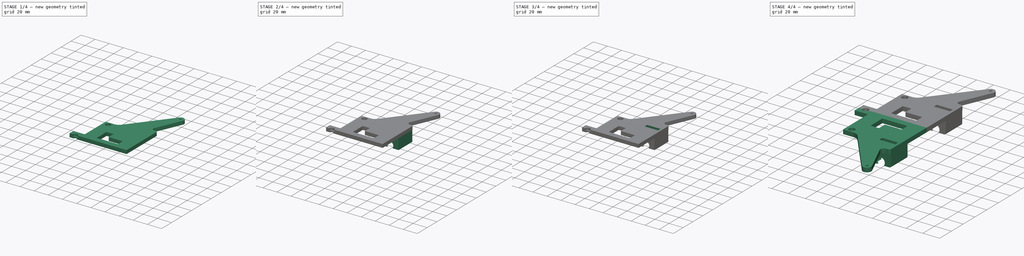
[diagram: build sequence overview — one tinted view per stage of 4, left to right]
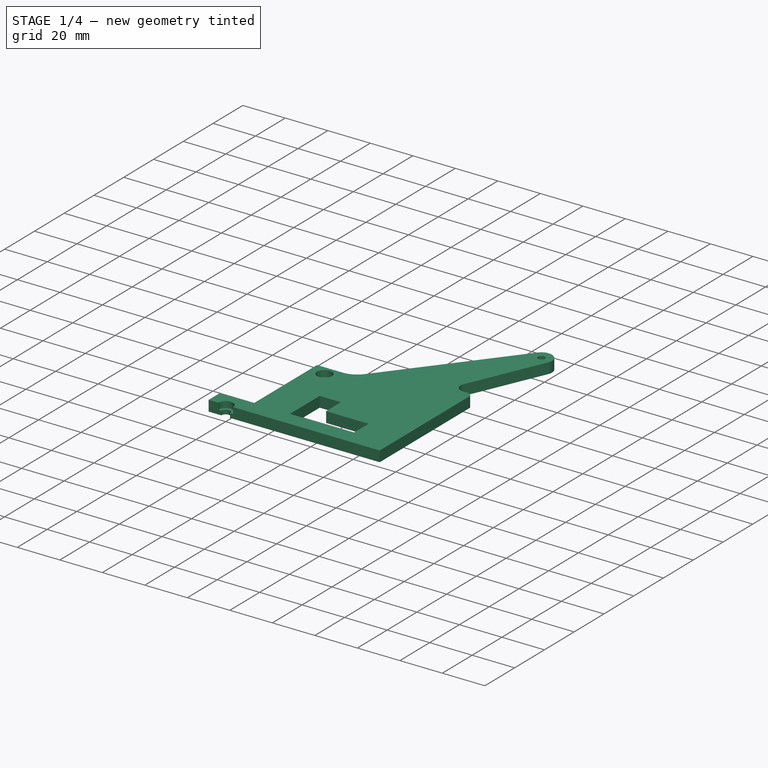
[diagram: stage 1 of 4 — iso view after this stage's code; geometry added in this stage tinted green]
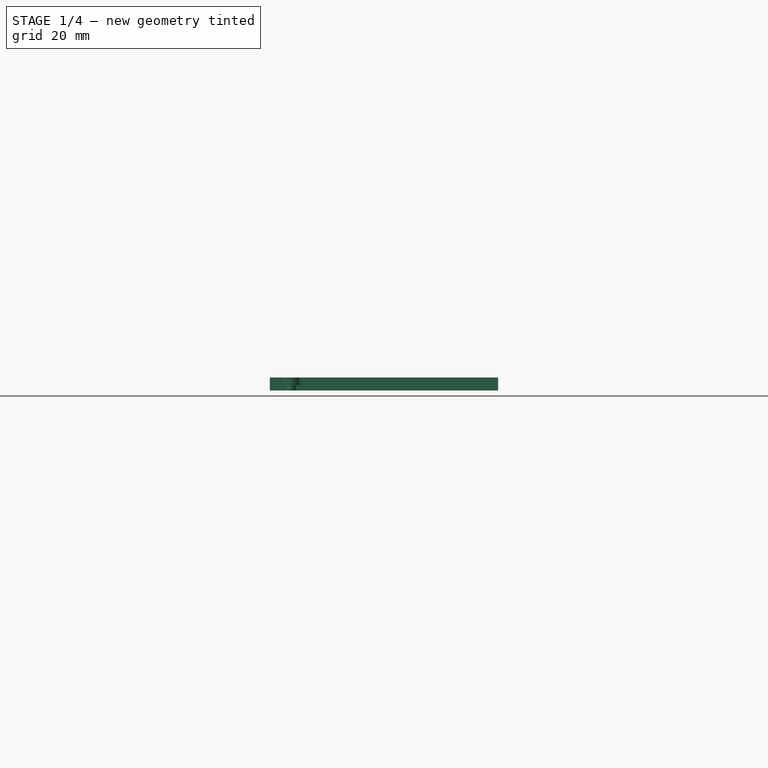
[diagram: stage 1 of 4 — front view after this stage's code; geometry added in this stage tinted green]
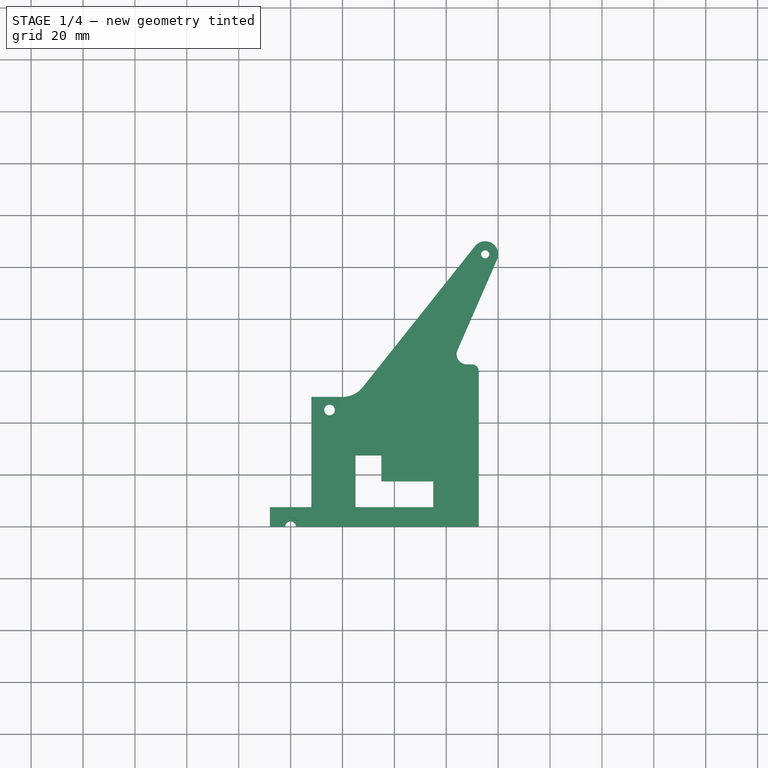
[diagram: stage 1 of 4 — top view after this stage's code; geometry added in this stage tinted green]
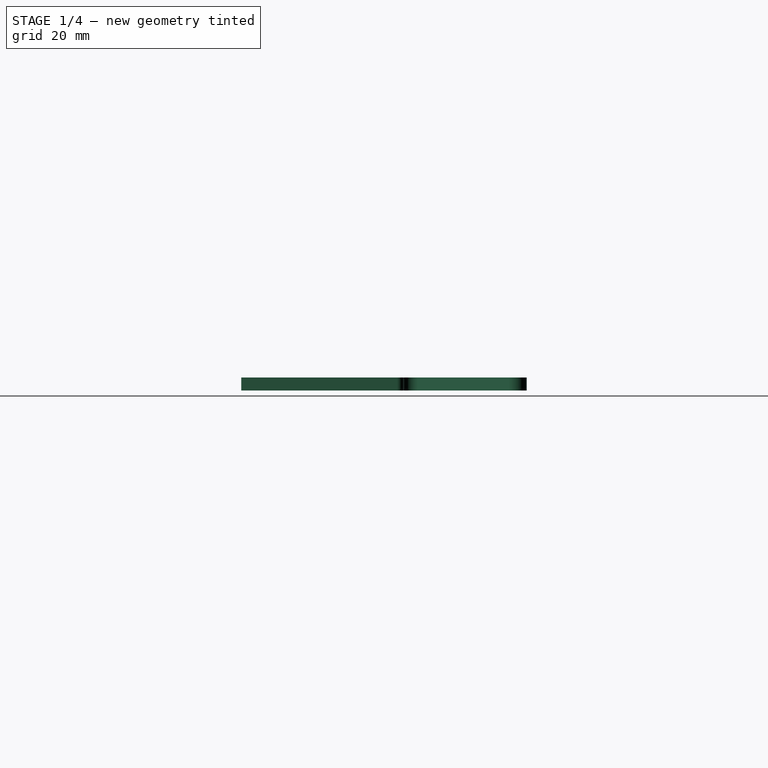
[diagram: stage 1 of 4 — right view after this stage's code; geometry added in this stage tinted green]
FCSTD DOCUMENT  (FreeCAD 2023.521R14555 (Git shallow))
Label: Y_Bed_Wing
License: All rights reserved
objects: Sketcher::SketchObject×6, PartDesign::Pocket×4, PartDesign::CoordinateSystem×2, PartDesign::Pad×2, PartDesign::Fillet×2, PartDesign::Plane×1, PartDesign::SubShapeBinder×1, PartDesign::Mirrored×1, PartDesign::Body×1, App::Part×1
note: 44 computed .brp shape members not serialized (recipe doc carries the construction recipe); baked Part::Feature solids carry a one-line shape summary decoded from their .brp

FEATURE [PartDesign::CoordinateSystem] LCS_0
  AttacherType = Attacher::AttachEngine3D
  AttachmentSupport = -> [X_Axis]
  InvalidShape = false
  MapMode = 2
  Support = -> [X_Axis]
  TreeRank = 3
  ValidateShape = false
FEATURE [PartDesign::CoordinateSystem] LCS_0001
  AttacherType = Attacher::AttachEngine3D
  AttachmentSupport = -> [X_Axis001]
  InvalidShape = false
  MapMode = 2
  Support = -> [X_Axis001]
  TreeRank = 21
  ValidateShape = false
FEATURE [Sketcher::SketchObject] Sketch
  ArcFitTolerance = 1e-06
  AttachmentSupport = -> [XY_Plane001]
  ExternalBSplineMaxDegree = 5
  ExternalBSplineTolerance = 0.0001
  FullyConstrained = true
  InternalTolerance = 1e-06
  InvalidShape = false
  MakeInternals = false
  MapMode = 5
  Support = -> [XY_Plane001]
  TreeRank = 23
  ValidateShape = false
  sketch-geometry (37):
    g0: Circle CenterX=55 CenterY=105 CenterZ=0 NormalX=0 NormalY=0 NormalZ=1 AngleXU=0 Radius=1.575
    g1: LineSegment [constr] StartX=-55 StartY=-105 StartZ=0 EndX=-55 EndY=105 EndZ=0
    g2: LineSegment [constr] StartX=-55 StartY=105 StartZ=0 EndX=55 EndY=105 EndZ=0
    g3: LineSegment [constr] StartX=55 StartY=105 StartZ=0 EndX=55 EndY=-105 EndZ=0
    g4: LineSegment [constr] StartX=55 StartY=-105 StartZ=0 EndX=-55 EndY=-105 EndZ=0
    g5: GeomPoint [constr] X=0 Y=0 Z=0
    g6: LineSegment [constr] StartX=-50 StartY=-60 StartZ=0 EndX=-50 EndY=60 EndZ=0
    g7: LineSegment [constr] StartX=-50 StartY=60 StartZ=0 EndX=50 EndY=60 EndZ=0
    g8: LineSegment [constr] StartX=50 StartY=60 StartZ=0 EndX=50 EndY=-60 EndZ=0
    g9: LineSegment [constr] StartX=50 StartY=-60 StartZ=0 EndX=-50 EndY=-60 EndZ=0
    g10: GeomPoint [constr] X=0 Y=0 Z=0
    g11: ArcOfCircle CenterX=55 CenterY=105 CenterZ=0 NormalX=0 NormalY=0 NormalZ=1 AngleXU=0 Radius=5 StartAngle=5.87126 EndAngle=8.75239
    g12: ArcOfCircle CenterX=48 CenterY=66.5 CenterZ=0 NormalX=0 NormalY=0 NormalZ=1 AngleXU=0 Radius=4 StartAngle=2.72967 EndAngle=4.71239
    g13: ArcOfCircle CenterX=50 CenterY=60 CenterZ=0 NormalX=0 NormalY=0 NormalZ=1 AngleXU=0 Radius=2.5 StartAngle=-9e-16 EndAngle=1.5708
    g14: LineSegment StartX=51.0883 StartY=108.114 StartZ=0 EndX=7.82337 EndY=53.7714 EndZ=0
    g15: LineSegment StartX=59.5818 StartY=102.998 StartZ=0 EndX=44.3346 EndY=68.1015 EndZ=0
    g16: LineSegment StartX=48 StartY=62.5 StartZ=0 EndX=50 EndY=62.5 EndZ=0
    g17: LineSegment StartX=52.5 StartY=60 StartZ=0 EndX=52.5 EndY=0 EndZ=0
    g18: LineSegment StartX=0 StartY=0 StartZ=0 EndX=52.5 EndY=0 EndZ=0
    g19: ArcOfCircle CenterX=0 CenterY=60 CenterZ=0 NormalX=0 NormalY=0 NormalZ=1 AngleXU=0 Radius=10 StartAngle=4.71239 EndAngle=5.6108
    g20: LineSegment StartX=0 StartY=50 StartZ=0 EndX=-12 EndY=50 EndZ=0
    g21: LineSegment StartX=-12 StartY=0 StartZ=0 EndX=0 EndY=0 EndZ=0
    g22: LineSegment StartX=-12 StartY=50 StartZ=0 EndX=-12 EndY=7.5 EndZ=0
    g23: LineSegment StartX=-12 StartY=7.5 StartZ=0 EndX=-28 EndY=7.5 EndZ=0
    g24: LineSegment StartX=-28 StartY=7.5 StartZ=0 EndX=-28 EndY=0 EndZ=0
    g25: ArcOfCircle CenterX=-20 CenterY=0 CenterZ=0 NormalX=0 NormalY=0 NormalZ=1 AngleXU=0 Radius=2.05 StartAngle=0 EndAngle=3.14159
    g26: LineSegment StartX=-28 StartY=0 StartZ=0 EndX=-22.05 EndY=0 EndZ=0
    g27: LineSegment StartX=-17.95 StartY=0 StartZ=0 EndX=-12 EndY=0 EndZ=0
    g28: Circle CenterX=-5 CenterY=45 CenterZ=0 NormalX=0 NormalY=0 NormalZ=1 AngleXU=0 Radius=2.05
    g29: LineSegment StartX=5 StartY=7.5 StartZ=0 EndX=5 EndY=27.5 EndZ=0
    g30: LineSegment StartX=5 StartY=27.5 StartZ=0 EndX=15 EndY=27.5 EndZ=0
    g31: LineSegment StartX=25 StartY=7.5 StartZ=0 EndX=5 EndY=7.5 EndZ=0
    g32: GeomPoint [constr] X=10 Y=17.5 Z=0
    g33: LineSegment StartX=15 StartY=27.5 StartZ=0 EndX=15 EndY=17.5 EndZ=0
    g34: LineSegment StartX=15 StartY=17.5 StartZ=0 EndX=35 EndY=17.5 EndZ=0
    g35: LineSegment StartX=35 StartY=17.5 StartZ=0 EndX=35 EndY=7.5 EndZ=0
    g36: LineSegment StartX=35 StartY=7.5 StartZ=0 EndX=25 EndY=7.5 EndZ=0
  constraints (97):
    c: Diameter(g0) = 3.15
    c: Coincident(g1,g2)
    c: Coincident(g2,g3)
    c: Coincident(g3,g4)
    c: Coincident(g4,g1)
    c: Horizontal(g2)
    c: Horizontal(g4)
    c: Vertical(g1)
    c: Vertical(g3)
    c: Symmetric(g2,g1,g5)
    c: Coincident(g5,g-1)
    c: Coincident(g2,g0)
    c: Coincident(g6,g7)
    c: Coincident(g7,g8)
    c: Coincident(g8,g9)
    c: Coincident(g9,g6)
    c: Horizontal(g7)
    c: Horizontal(g9)
    c: Vertical(g6)
    c: Vertical(g8)
    c: Symmetric(g7,g6,g10)
    c: Coincident(g10,g5)
    c: DistanceX(g7,g7) = 100
    c: DistanceY(g3,g3) = 210
    c: DistanceX(g2,g2) = 110
    c: DistanceY(g8,g8) = 120
    c: Coincident(g11,g0)
    c: Coincident(g13,g7)
    c: PointOnObject(g17,g-1)
    c: Vertical(g17)
    c: Horizontal(g16)
    c: Tangent(g15,g12) = -1.5708
    c: Tangent(g16,g12) = -1.5708
    c: Tangent(g14,g11) = -1.5708
    c: Tangent(g15,g11) = 1.5708
    c: Diameter(g11) = 10
    c: Diameter(g12) = 8
    c: Tangent(g16,g13) = 1.5708
    c: Tangent(g17,g13) = 1.5708
    c: Diameter(g13) = 5
    c: Coincident(g18,g17)
    c: Vertical(g19,g19)
    c: Vertical(g19,g18)
    c: Coincident(g5,g18)
    c: Tangent(g19,g14) = 1.5708
    c: Diameter(g19) = 20
    c: Coincident(g20,g19)
    c: Horizontal(g20)
    c: PointOnObject(g21,g-1)
    c: Coincident(g21,g18)
    c: DistanceY(g21,g20) = 50
    c: DistanceX(g21,g21) = 12
    c: Coincident(g22,g20)
    c: Vertical(g22)
    c: Horizontal(g23)
    c: PointOnObject(g24,g-1)
    c: Coincident(g23,g24)
    c: PointOnObject(g25,g-1)
    c: PointOnObject(g25,g-1)
    c: PointOnObject(g25,g-1)
    c: Coincident(g26,g24)
    c: Coincident(g26,g25)
    c: Coincident(g27,g25)
    c: Coincident(g27,g21)
    c: Vertical(g24)
    c: Vertical(g21,g22)
    c: DistanceY(g24,g24) = 7.5
    c: DistanceX(g25,g18) = 20
    c: Equal(g28,g25)
    c: Diameter(g28) = 4.1
    c: DistanceX(g23,g23) = 16
    c: DistanceX(g28,g18) = 5
    c: DistanceY(g18,g28) = 45
    c: Coincident(g22,g23)
    c: DistanceX(g16,g16) = 2
    c: Coincident(g29,g30)
    c: Coincident(g31,g29)
    c: Horizontal(g30)
    c: Vertical(g29)
    c: Symmetric(g30,g29,g32)
    c: DistanceX(g18,g32) = 10
    c: DistanceX(g31,g31) = 20
    c: Coincident(g33,g30)
    c: Vertical(g33)
    c: Horizontal(g34)
    c: Coincident(g36,g31)
    c: Horizontal(g36)
    c: Coincident(g33,g34)
    c: Coincident(g34,g35)
    c: Coincident(g35,g36)
    c: Horizontal(g31)
    c: Horizontal(g22,g29)
    c: Vertical(g35)
    c: DistanceX(g30,g30) = 10
    c: DistanceX(g34,g34) = 20
    c: DistanceY(g35,g35) = 10
    c: DistanceY(g29,g29) = 20
FEATURE [PartDesign::Pad] Pad
  AddSubType = 0
  AlongSketchNormal = false
  AutoTaperInnerAngle = true
  CheckUpToFaceLimits = true
  ClaimChildren = false
  Direction = (0,0,1)
  Fit = 0
  FitJoin = 0
  InnerFit = 0
  InnerFitJoin = 0
  InvalidShape = false
  Length = 5
  Length2 = 10
  Linearize = true
  NewSolid = false
  Profile = -> Sketch
  ReferenceAxis = -> Sketch [N_Axis]
  Suppress = false
  TaperInnerAngle = 0
  TaperInnerAngleRev = 0
  TreeRank = 24
  Type = 0
  ValidateShape = true
  _ProfileBasedVersion = 1
FEATURE [Sketcher::SketchObject] Sketch001
  ArcFitTolerance = 1e-06
  AttachmentOffset = pos=(0,0,0) rot=(1,0,0;3.14159rad)
  AttachmentSupport = -> [Pad]
  ExternalBSplineMaxDegree = 5
  ExternalBSplineTolerance = 0.0001
  ExternalGeometry = -> [Pad]
  FullyConstrained = true
  InternalTolerance = 1e-06
  InvalidShape = false
  MakeInternals = false
  MapMode = 5
  Placement = pos=(0,0,5) rot=(1,0,0;3.14159rad)
  Support = -> [Pad]
  TreeRank = 26
  ValidateShape = false
  sketch-geometry (2):
    g0: Circle CenterX=-20 CenterY=0 CenterZ=0 NormalX=0 NormalY=0 NormalZ=1 AngleXU=0 Radius=3.5
    g1: Circle CenterX=-5 CenterY=-45 CenterZ=0 NormalX=0 NormalY=0 NormalZ=1 AngleXU=0 Radius=3.5
  constraints (4):
    c: Coincident(g0,g-3)
    c: Coincident(g1,g-4)
    c: Equal(g1,g0)
    c: Diameter(g0) = 7
FEATURE [PartDesign::Pocket] Pocket
  AddSubType = 1
  AlongSketchNormal = false
  AutoTaperInnerAngle = true
  BaseFeature = -> Pad
  CheckUpToFaceLimits = true
  ClaimChildren = false
  Direction = (0,1e-16,1)
  Fit = 0
  FitJoin = 0
  InnerFit = 0
  InnerFitJoin = 0
  InvalidShape = false
  Length = 3
  Length2 = 10
  Linearize = true
  NewSolid = false
  Profile = -> Sketch001
  ReferenceAxis = -> Sketch001 [N_Axis]
  Reversed = true
  Suppress = false
  TaperInnerAngle = 0
  TaperInnerAngleRev = 0
  TreeRank = 27
  Type = 0
  ValidateShape = true
  _ProfileBasedVersion = 1
  _Version = 1
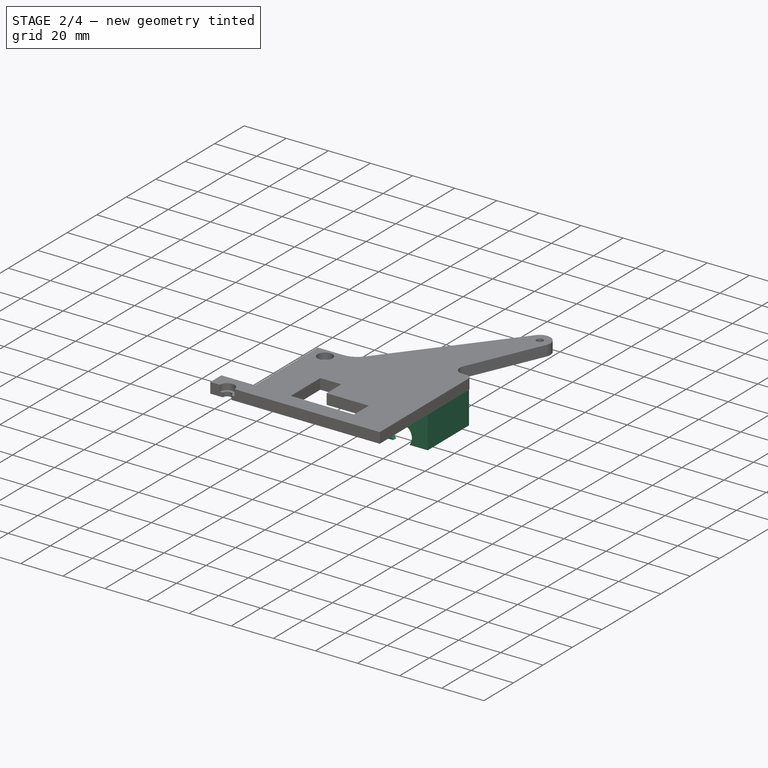
[diagram: stage 2 of 4 — iso view after this stage's code; geometry added in this stage tinted green]
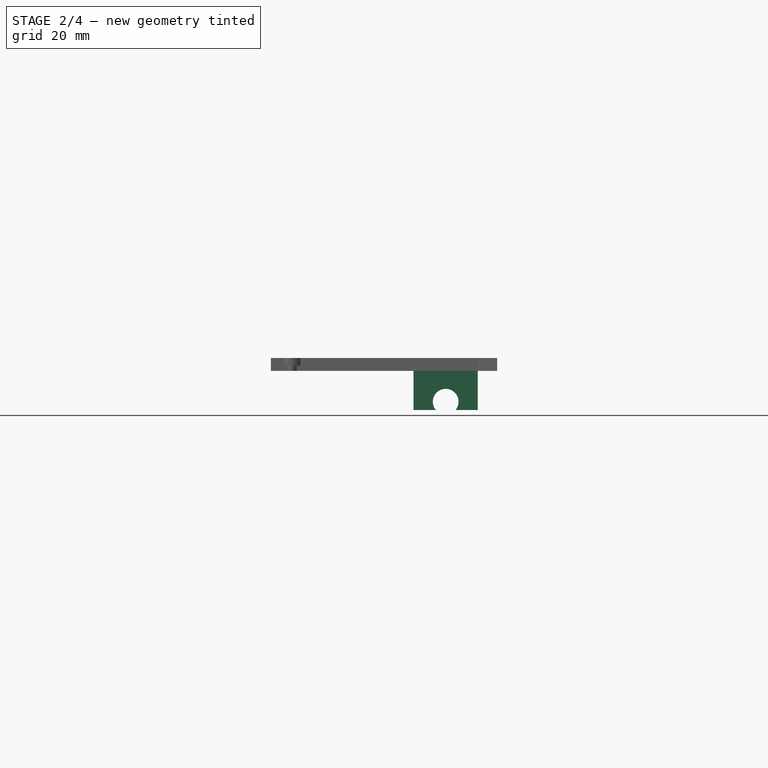
[diagram: stage 2 of 4 — front view after this stage's code; geometry added in this stage tinted green]
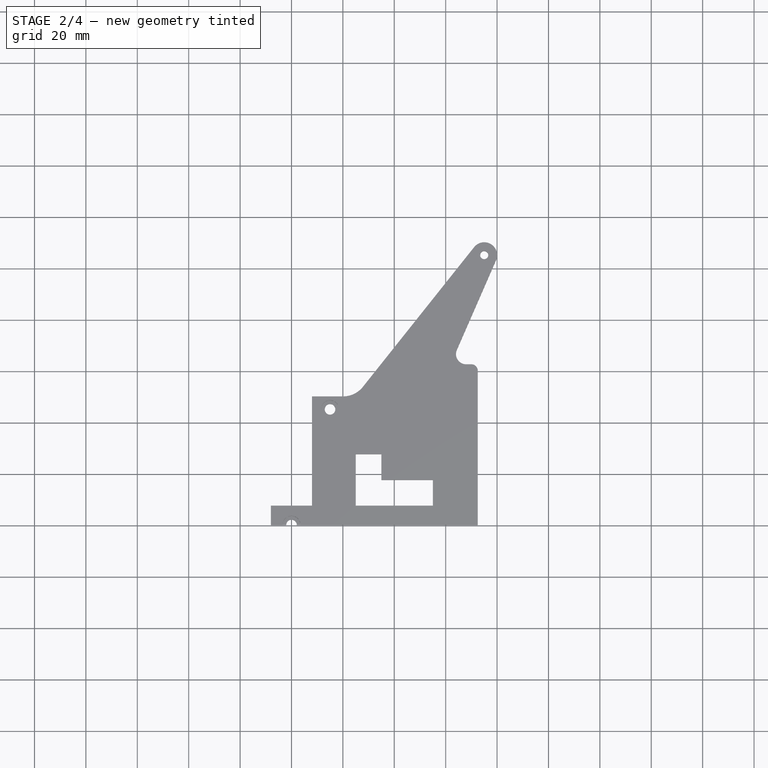
[diagram: stage 2 of 4 — top view after this stage's code; geometry added in this stage tinted green]
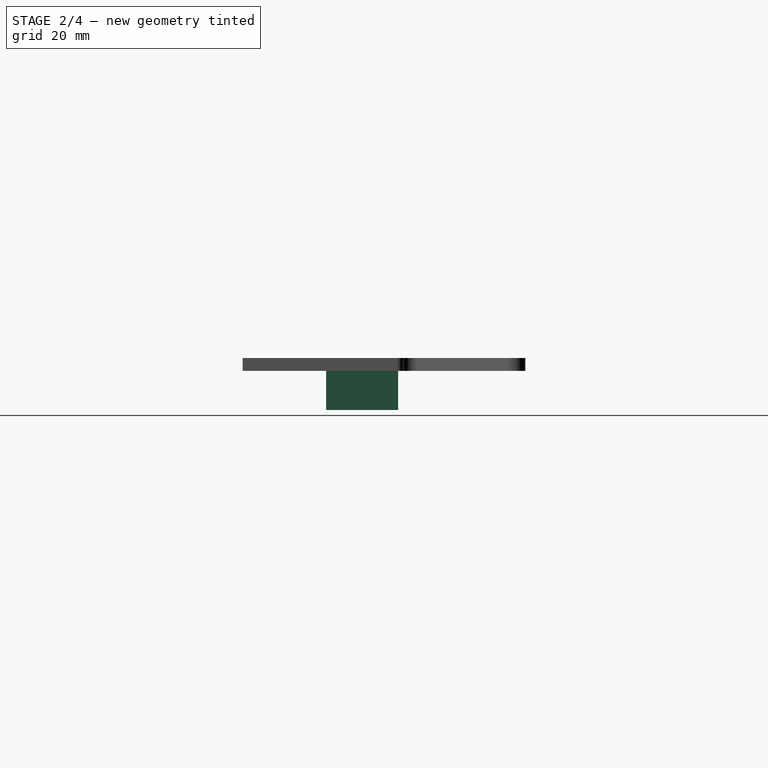
[diagram: stage 2 of 4 — right view after this stage's code; geometry added in this stage tinted green]
FEATURE [PartDesign::Plane] DatumPlane
  AttachmentOffset = pos=(0,0,16) rot=(0,0,1;0rad)
  AttachmentSupport = -> [Pocket]
  InvalidShape = false
  Length = 10
  MapMode = 5
  MinimumLength = 10
  MinimumWidth = 10
  Placement = pos=(0,46.5,3.6e-15) rot=(1,0,0;1.5708rad)
  ResizeMode = 0
  Support = -> [Pocket]
  TreeRank = 29
  ValidateShape = false
  Width = 10
FEATURE [Sketcher::SketchObject] Sketch002
  ArcFitTolerance = 1e-06
  AttachmentSupport = -> [DatumPlane]
  ExternalBSplineMaxDegree = 5
  ExternalBSplineTolerance = 0.0001
  ExternalGeometry = -> [Pocket]
  FullyConstrained = true
  InternalTolerance = 1e-06
  InvalidShape = false
  MakeInternals = false
  MapMode = 5
  Placement = pos=(0,46.5,3.6e-15) rot=(1,0,0;1.5708rad)
  Support = -> [DatumPlane]
  TreeRank = 30
  ValidateShape = false
  sketch-geometry (6):
    g0: ArcOfCircle CenterX=40 CenterY=-12 CenterZ=0 NormalX=0 NormalY=0 NormalZ=1 AngleXU=0 Radius=5 StartAngle=5.58505 EndAngle=10.1229
    g1: LineSegment StartX=52.5 StartY=-15.2139 StartZ=0 EndX=52.5 EndY=-1.42e-14 EndZ=0
    g2: LineSegment StartX=52.5 StartY=-1.42e-14 StartZ=0 EndX=27.5 EndY=-1.39e-14 EndZ=0
    g3: LineSegment StartX=43.8302 StartY=-15.2139 StartZ=0 EndX=52.5 EndY=-15.2139 EndZ=0
    g4: LineSegment StartX=27.5 StartY=-1.39e-14 StartZ=0 EndX=27.5 EndY=-15.2139 EndZ=0
    g5: LineSegment StartX=36.1698 StartY=-15.2139 StartZ=0 EndX=27.5 EndY=-15.2139 EndZ=0
  constraints (18):
    c: DistanceX(g0) = 40
    c: Diameter(g0) = 10
    c: DistanceY(g0,g-3) = 12
    c: Vertical(g1)
    c: Coincident(g2,g1)
    c: PointOnObject(g2,g-3)
    c: Coincident(g3,g0)
    c: Coincident(g1,g-3)
    c: Angle(g0) = 4.53786
    c: Coincident(g4,g2)
    c: Vertical(g4)
    c: Coincident(g5,g0)
    c: Coincident(g5,g4)
    c: Horizontal(g5)
    c: Horizontal(g3)
    c: Coincident(g3,g1)
    c: Horizontal(g0,g0)
    c: Equal(g5,g3)
FEATURE [PartDesign::Pad] Pad001
  AddSubType = 0
  AlongSketchNormal = false
  AutoTaperInnerAngle = true
  BaseFeature = -> Pocket
  CheckUpToFaceLimits = true
  ClaimChildren = false
  Direction = (0,-1,2e-16)
  Fit = 0
  FitJoin = 0
  InnerFit = 0
  InnerFitJoin = 0
  InvalidShape = false
  Length = 28
  Length2 = 10
  Linearize = true
  Midplane = true
  NewSolid = false
  Profile = -> Sketch002
  ReferenceAxis = -> Sketch002 [N_Axis]
  Suppress = false
  TaperInnerAngle = 0
  TaperInnerAngleRev = 0
  TreeRank = 31
  Type = 0
  ValidateShape = true
  _ProfileBasedVersion = 1
FEATURE [Sketcher::SketchObject] Sketch003
  ArcFitTolerance = 1e-06
  AttachmentSupport = -> [DatumPlane]
  ExternalBSplineMaxDegree = 5
  ExternalBSplineTolerance = 0.0001
  ExternalGeometry = -> [Pad001]
  FullyConstrained = true
  InternalTolerance = 1e-06
  InvalidShape = false
  MakeInternals = false
  MapMode = 5
  Placement = pos=(0,46.5,3.6e-15) rot=(1,0,0;1.5708rad)
  Support = -> [DatumPlane]
  TreeRank = 32
  ValidateShape = false
  sketch-geometry (4):
    g0: ArcOfCircle CenterX=40 CenterY=-12 CenterZ=0 NormalX=0 NormalY=0 NormalZ=1 AngleXU=0 Radius=7.5 StartAngle=5.84033 EndAngle=9.86764
    g1: ArcOfCircle CenterX=40 CenterY=-12 CenterZ=0 NormalX=0 NormalY=0 NormalZ=1 AngleXU=0 Radius=5 StartAngle=5.58505 EndAngle=10.1229
    g2: LineSegment StartX=43.8302 StartY=-15.2139 StartZ=0 EndX=46.7765 EndY=-15.2139 EndZ=0
    g3: LineSegment StartX=33.2235 StartY=-15.2139 StartZ=0 EndX=36.1698 EndY=-15.2139 EndZ=0
  constraints (11):
    c: Diameter(g0) = 15
    c: Coincident(g2,g-3)
    c: Coincident(g0,g2)
    c: Coincident(g1,g2)
    c: Coincident(g1,g-3)
    c: Equal(g1,g-3)
    c: Coincident(g0,g-3)
    c: Coincident(g3,g0)
    c: Coincident(g3,g1)
    c: Horizontal(g0,g1)
    c: Horizontal(g1,g0)
FEATURE [PartDesign::Pocket] Pocket001
  AddSubType = 1
  AlongSketchNormal = false
  AutoTaperInnerAngle = true
  BaseFeature = -> Pad001
  CheckUpToFaceLimits = true
  ClaimChildren = false
  Direction = (0,1,-2e-16)
  Fit = 0
  FitJoin = 0
  InnerFit = 0
  InnerFitJoin = 0
  InvalidShape = false
  Length = 24
  Length2 = 10
  Linearize = true
  Midplane = true
  NewSolid = false
  Profile = -> Sketch003
  ReferenceAxis = -> Sketch003 [N_Axis]
  Suppress = false
  TaperInnerAngle = 0
  TaperInnerAngleRev = 0
  TreeRank = 33
  Type = 0
  ValidateShape = true
  _ProfileBasedVersion = 1
  _Version = 1
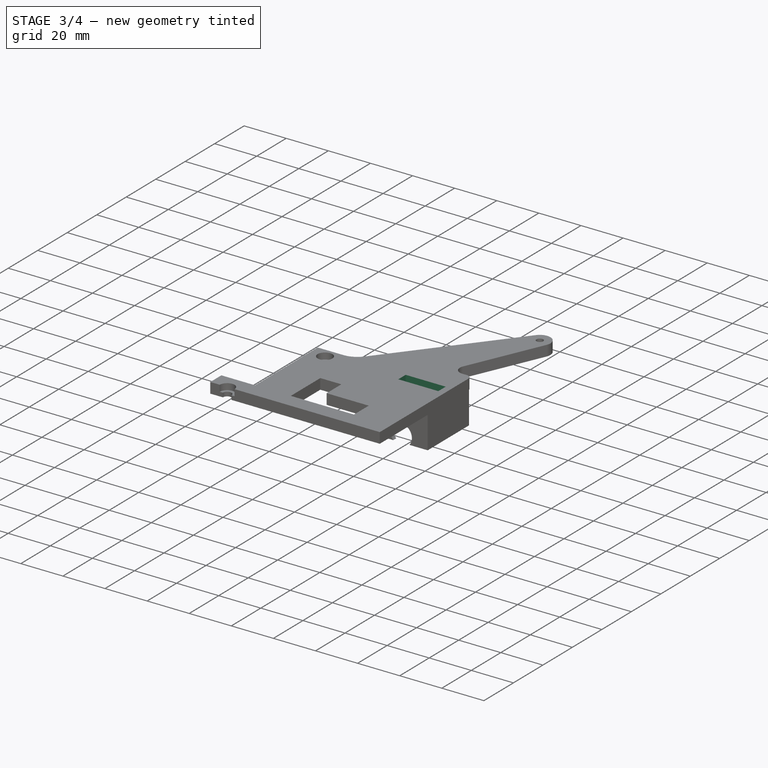
[diagram: stage 3 of 4 — iso view after this stage's code; geometry added in this stage tinted green]
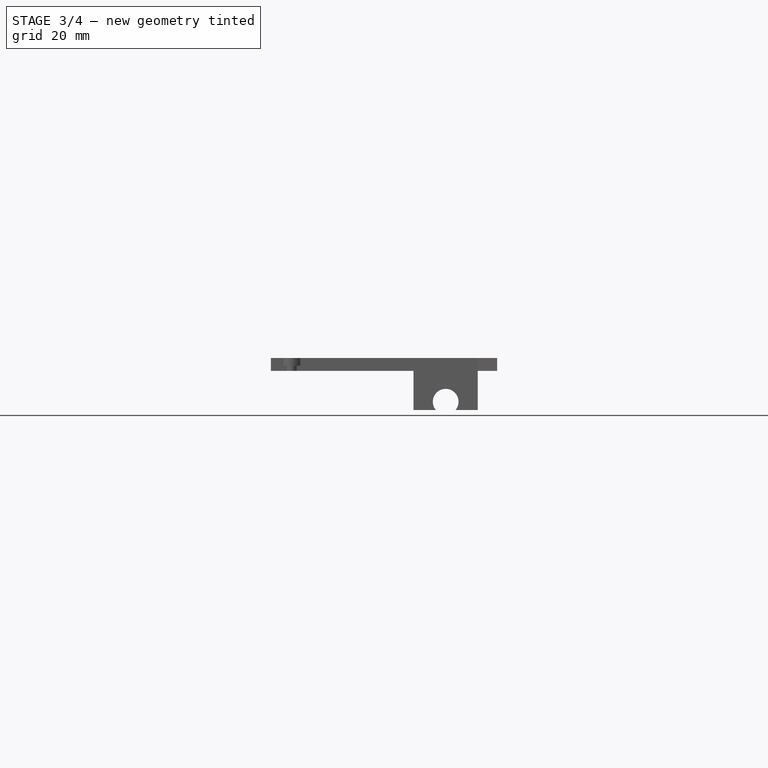
[diagram: stage 3 of 4 — front view after this stage's code; geometry added in this stage tinted green]
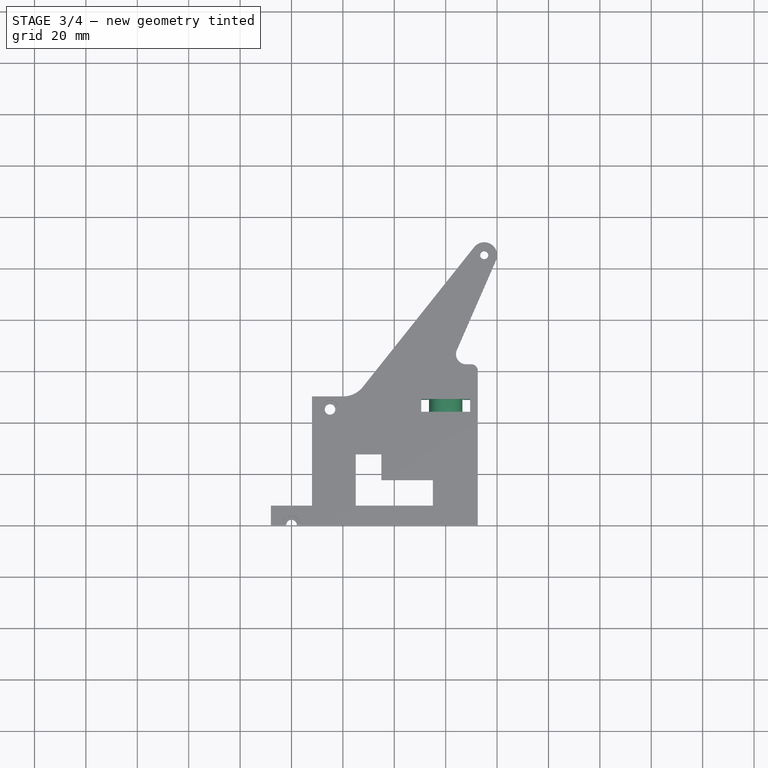
[diagram: stage 3 of 4 — top view after this stage's code; geometry added in this stage tinted green]
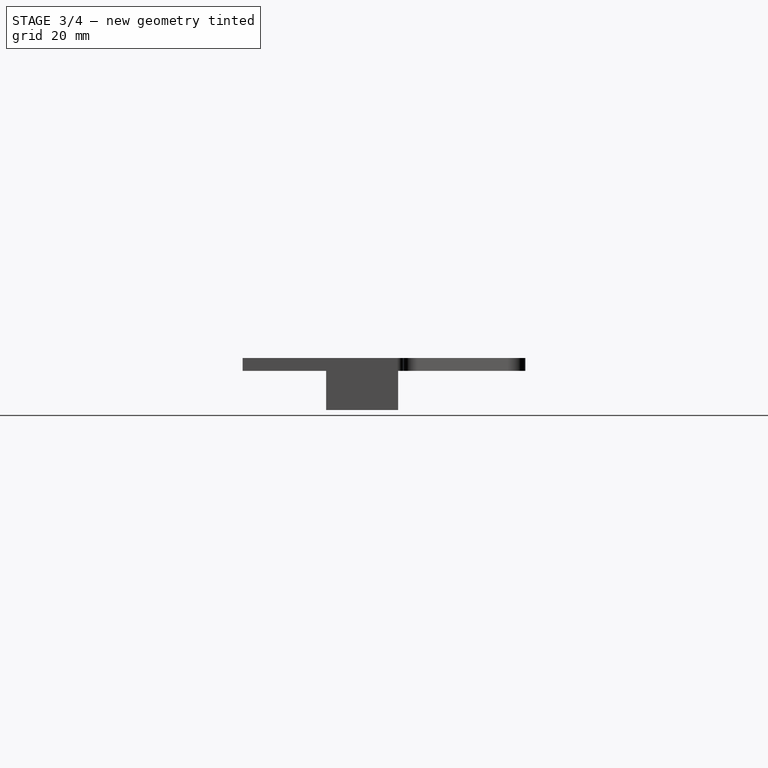
[diagram: stage 3 of 4 — right view after this stage's code; geometry added in this stage tinted green]
FEATURE [Sketcher::SketchObject] Sketch004
  ArcFitTolerance = 1e-06
  AttachmentSupport = -> [Pocket001]
  ExternalBSplineMaxDegree = 5
  ExternalBSplineTolerance = 0.0001
  ExternalGeometry = -> [Pocket001]
  FullyConstrained = true
  InternalTolerance = 1e-06
  InvalidShape = false
  MakeInternals = false
  MapMode = 5
  Placement = pos=(0,-3.4e-15,-15.2139) rot=(1,0,0;3.14159rad)
  Support = -> [Pocket001]
  TreeRank = 34
  ValidateShape = false
  sketch-geometry (13):
    g0: LineSegment StartX=33.5 StartY=-44 StartZ=0 EndX=33.5 EndY=-49 EndZ=0
    g1: LineSegment StartX=33.5 StartY=-49 StartZ=0 EndX=30.5 EndY=-49 EndZ=0
    g2: LineSegment StartX=30.5 StartY=-49 StartZ=0 EndX=30.5 EndY=-44 EndZ=0
    g3: LineSegment StartX=30.5 StartY=-44 StartZ=0 EndX=33.5 EndY=-44 EndZ=0
    g4: GeomPoint [constr] X=32 Y=-46.5 Z=0
    g5: LineSegment StartX=46.5 StartY=-44 StartZ=0 EndX=46.5 EndY=-49 EndZ=0
    g6: LineSegment StartX=46.5 StartY=-49 StartZ=0 EndX=49.5 EndY=-49 EndZ=0
    g7: LineSegment StartX=49.5 StartY=-49 StartZ=0 EndX=49.5 EndY=-44 EndZ=0
    g8: LineSegment StartX=49.5 StartY=-44 StartZ=0 EndX=46.5 EndY=-44 EndZ=0
    g9: GeomPoint [constr] X=48 Y=-46.5 Z=0
    g10: GeomPoint [constr] X=27.5 Y=-46.5 Z=0
    g11: LineSegment [constr] StartX=27.5 StartY=-44 StartZ=0 EndX=30.5 EndY=-44 EndZ=0
    g12: LineSegment [constr] StartX=49.5 StartY=-44 StartZ=0 EndX=52.5 EndY=-44 EndZ=0
  constraints (33):
    c: Coincident(g0,g1)
    c: Coincident(g1,g2)
    c: Coincident(g2,g3)
    c: Coincident(g3,g0)
    c: Horizontal(g1)
    c: Horizontal(g3)
    c: Vertical(g2)
    c: Symmetric(g1,g0,g4)
    c: Coincident(g5,g6)
    c: Coincident(g6,g7)
    c: Coincident(g7,g8)
    c: Coincident(g8,g5)
    c: Horizontal(g6)
    c: Horizontal(g8)
    c: Vertical(g5)
    c: Vertical(g7)
    c: Symmetric(g6,g5,g9)
    c: Equal(g1,g6)
    c: Equal(g5,g0)
    c: Symmetric(g-3,g-3,g10)
    c: Horizontal(g4,g9)
    c: Horizontal(g9,g10)
    c: DistanceY(g0,g0) = 5
    c: DistanceX(g1,g1) = 3
    c: Vertical(g0)
    c: PointOnObject(g11,g-3)
    c: Coincident(g11,g2)
    c: Coincident(g12,g7)
    c: PointOnObject(g12,g-4)
    c: Horizontal(g12)
    c: Horizontal(g11)
    c: Equal(g11,g12)
    c: DistanceX(g12,g12) = 3
FEATURE [PartDesign::Pocket] Pocket002
  AddSubType = 1
  AlongSketchNormal = false
  AutoTaperInnerAngle = true
  BaseFeature = -> Pocket001
  CheckUpToFaceLimits = true
  ClaimChildren = false
  Direction = (0,2e-16,1)
  Fit = 0
  FitJoin = 0
  InnerFit = 0
  InnerFitJoin = 0
  InvalidShape = false
  Length = 5
  Length2 = 10
  Linearize = true
  Midplane = true
  NewSolid = false
  Profile = -> Sketch004
  ReferenceAxis = -> Sketch004 [N_Axis]
  Suppress = false
  TaperInnerAngle = 0
  TaperInnerAngleRev = 0
  TreeRank = 35
  Type = 1
  ValidateShape = true
  _ProfileBasedVersion = 1
  _Version = 1
FEATURE [PartDesign::SubShapeBinder] Binder  label="Binder(Fillet001)"
  BindCopyOnChange = 0
  BindMode = 0
  ClaimChildren = false
  Context = -> Wing [Body.Binder.]
  EdgeTolerance = 1e-06
  FillStyle = 0
  Fuse = false
  InvalidShape = false
  MakeFace = true
  MergeEdges = true
  OffsetFill = false
  OffsetIntersection = false
  OffsetJoinType = 0
  OffsetOpenResult = false
  Outline = false
  PartialLoad = false
  Relative = true
  SplitEdges = false
  Support = -> [Fillet001]
  TightBound = false
  TreeRank = 38
  ValidateShape = false
  _Version = 8
FEATURE [Sketcher::SketchObject] Sketch005
  ArcFitTolerance = 1e-06
  AttachmentSupport = -> [Pocket002]
  ExternalBSplineMaxDegree = 5
  ExternalBSplineTolerance = 0.0001
  ExternalGeometry = -> [Pocket002]
  FullyConstrained = true
  InternalTolerance = 1e-06
  InvalidShape = false
  MakeInternals = false
  MapMode = 5
  Placement = pos=(33.5,0,0) rot=(0.57735,-0.57735,-0.57735;2.0944rad)
  Support = -> [Pocket002]
  TreeRank = 40
  ValidateShape = false
  sketch-geometry (4):
    g0: LineSegment StartX=-49 StartY=5 StartZ=0 EndX=-44 EndY=5 EndZ=0
    g1: LineSegment StartX=-44 StartY=5 StartZ=0 EndX=-44 EndY=2 EndZ=0
    g2: LineSegment StartX=-44 StartY=2 StartZ=0 EndX=-49 EndY=2 EndZ=0
    g3: LineSegment StartX=-49 StartY=2 StartZ=0 EndX=-49 EndY=5 EndZ=0
  constraints (11):
    c: Coincident(g0,g1)
    c: Coincident(g1,g2)
    c: Coincident(g2,g3)
    c: Coincident(g3,g0)
    c: Horizontal(g0)
    c: Horizontal(g2)
    c: Vertical(g1)
    c: Vertical(g3)
    c: Coincident(g0,g-4)
    c: PointOnObject(g1,g-3)
    c: DistanceY(g1,g1) = 3
FEATURE [PartDesign::Pocket] Pocket003
  AddSubType = 1
  AlongSketchNormal = false
  AutoTaperInnerAngle = true
  BaseFeature = -> Pocket002
  CheckUpToFaceLimits = true
  ClaimChildren = false
  Direction = (1,0,0)
  Fit = 0
  FitJoin = 0
  InnerFit = 0
  InnerFitJoin = 0
  InvalidShape = false
  Length = 0
  Length2 = 10
  Linearize = true
  NewSolid = false
  Profile = -> Sketch005
  ReferenceAxis = -> Sketch005 [N_Axis]
  Suppress = false
  TaperInnerAngle = 0
  TaperInnerAngleRev = 0
  TreeRank = 41
  Type = 3
  UpToFace = -> Pocket002 [Face38]
  ValidateShape = true
  _ProfileBasedVersion = 1
  _Version = 1
FEATURE [PartDesign::Fillet] Fillet
  AddSubType = 0
  Base = -> Pocket003 [Edge157,Edge158]
  BaseFeature = -> Pocket003
  InvalidShape = false
  NewSolid = false
  Radius = 6
  SupportTransform = false
  Suppress = false
  TreeRank = 36
  UseAllEdges = false
  ValidateShape = true
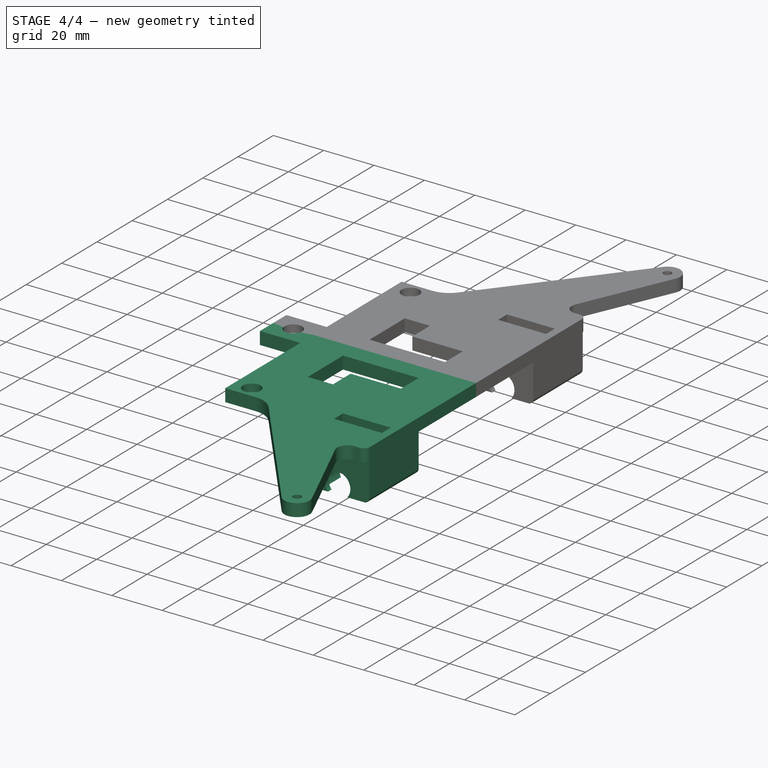
[diagram: stage 4 of 4 — iso view after this stage's code; geometry added in this stage tinted green]
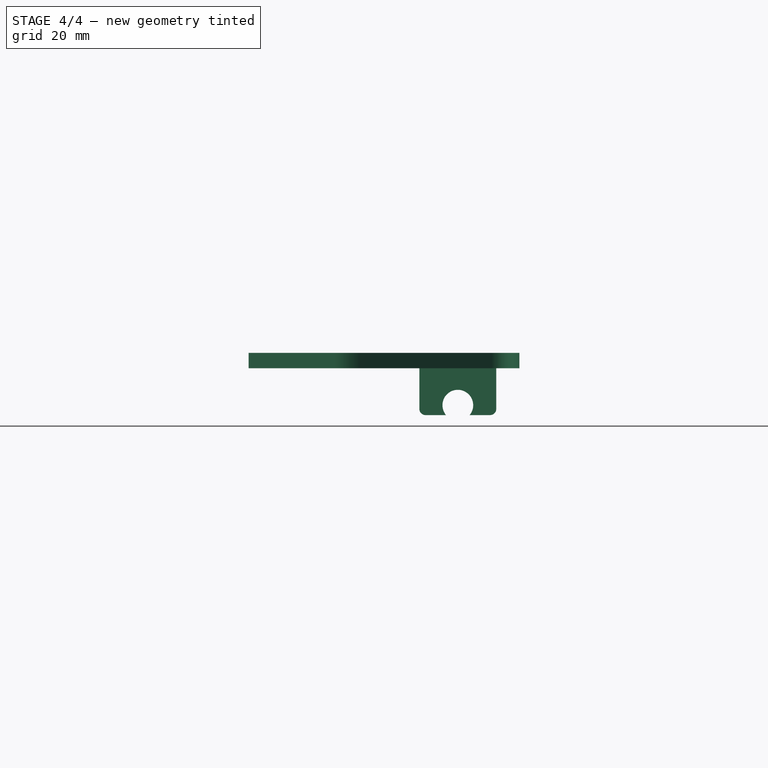
[diagram: stage 4 of 4 — front view after this stage's code; geometry added in this stage tinted green]
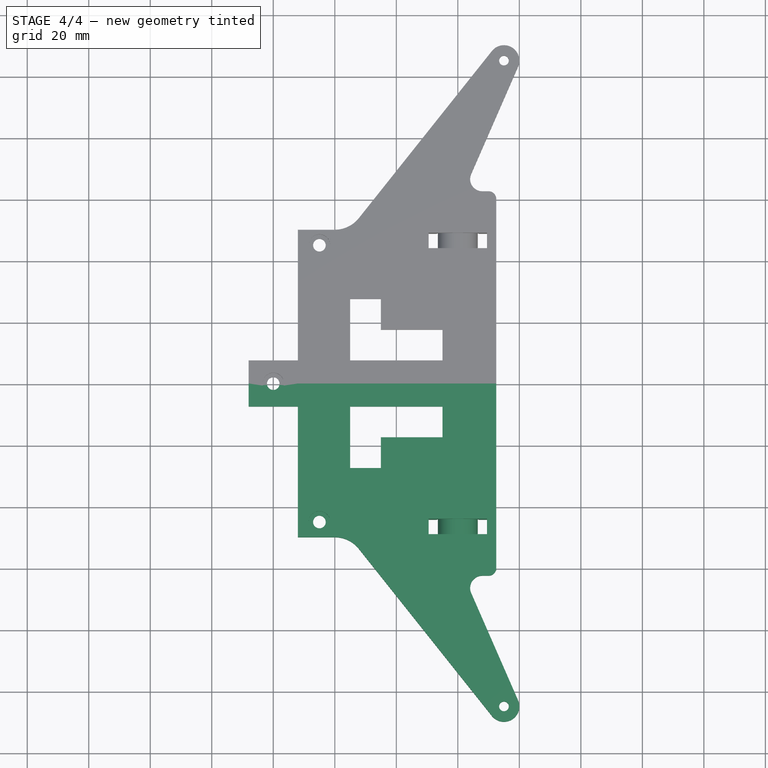
[diagram: stage 4 of 4 — top view after this stage's code; geometry added in this stage tinted green]
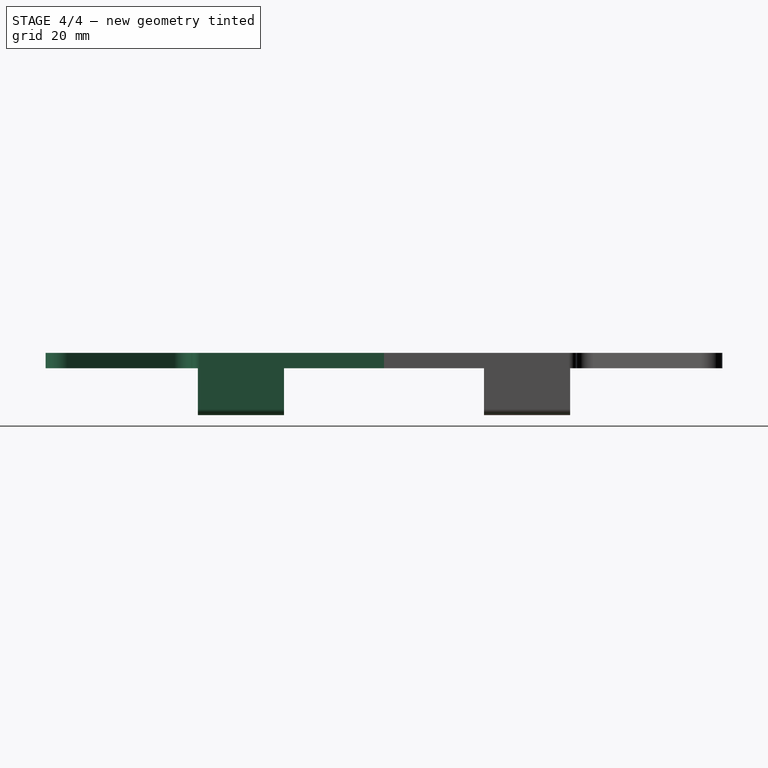
[diagram: stage 4 of 4 — right view after this stage's code; geometry added in this stage tinted green]
FEATURE [PartDesign::Fillet] Fillet001
  AddSubType = 0
  Base = -> Fillet [Edge85,Edge28]
  BaseFeature = -> Fillet
  InvalidShape = false
  NewSolid = false
  Radius = 2
  SupportTransform = false
  Suppress = false
  TreeRank = 37
  UseAllEdges = false
  ValidateShape = true
FEATURE [PartDesign::Mirrored] Mirrored
  AddSubType = 0
  BaseFeature = -> Fillet001
  CopyShape = false
  InvalidShape = false
  MirrorPlane = -> XZ_Plane001
  NewSolid = false
  OriginalSubs = -> [Binder]
  Originals = -> [Binder]
  ParallelTransform = true
  SubTransform = true
  Suppress = false
  TreeRank = 39
  ValidateShape = true
  _Version = 3
FEATURE [PartDesign::Body] Body
  AutoGroupSolids = false
  ClaimAllChildren = false
  ExportMode = 0
  Group = -> [LCS_0001,Sketch,Pad,Sketch001,Pocket,DatumPlane,Sketch002,Pad001,Sketch003,Pocket001,Sketch004,Pocket002,Sketch005,Pocket003,Fillet,Fillet001,Binder,Mirrored]
  InvalidShape = false
  Origin = -> Origin001
  Tip = -> Mirrored
  TreeRank = 22
  ValidateShape = false
  _ExportChildren = -> [LCS_0001,Pad,Pocket,DatumPlane,Pad001,Pocket001,Pocket002,Pocket003,Fillet,Fillet001,Binder,Mirrored]
  _GroupVersion = 1
FEATURE [App::Part] Wing
  ClaimAllChildren = false
  ExportMode = 1
  Group = -> [LCS_0,Body]
  Origin = -> Origin
  TreeRank = 11
  _ExportChildren = -> [LCS_0,Body]
  _GroupVersion = 1
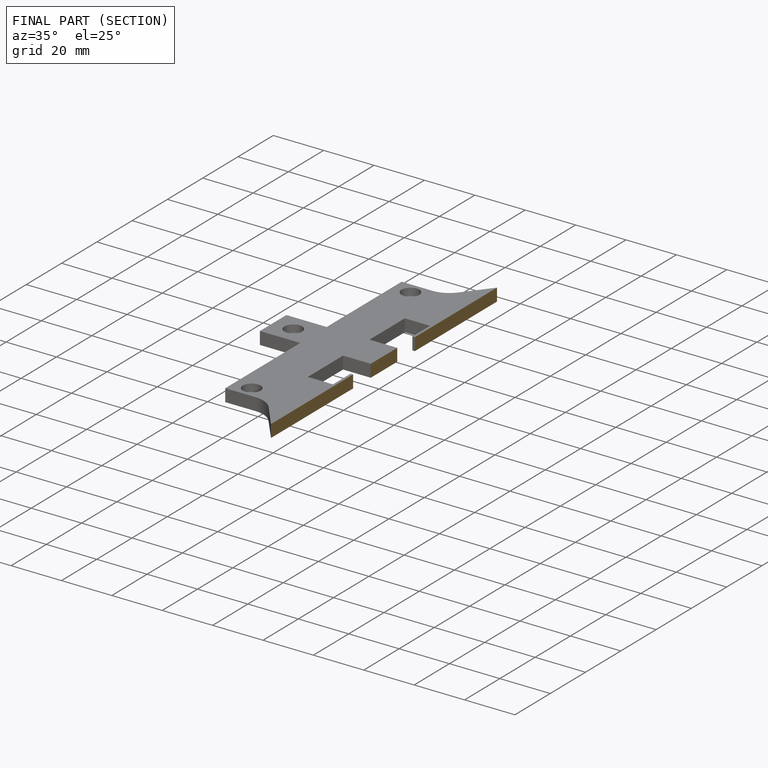
[diagram: finished part — half-section view (interior)]
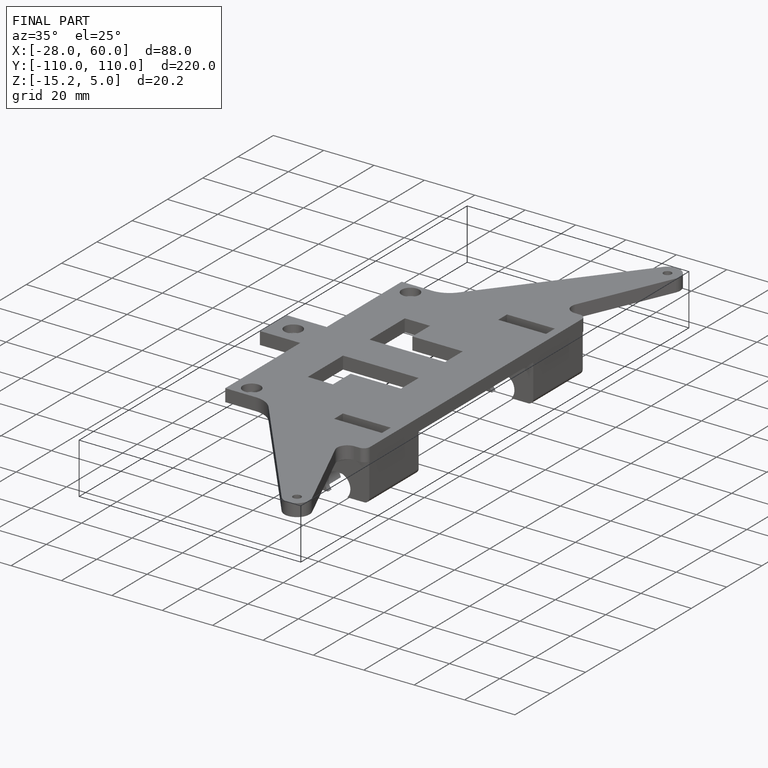
[diagram: finished part — iso view with bounding-box wireframe]
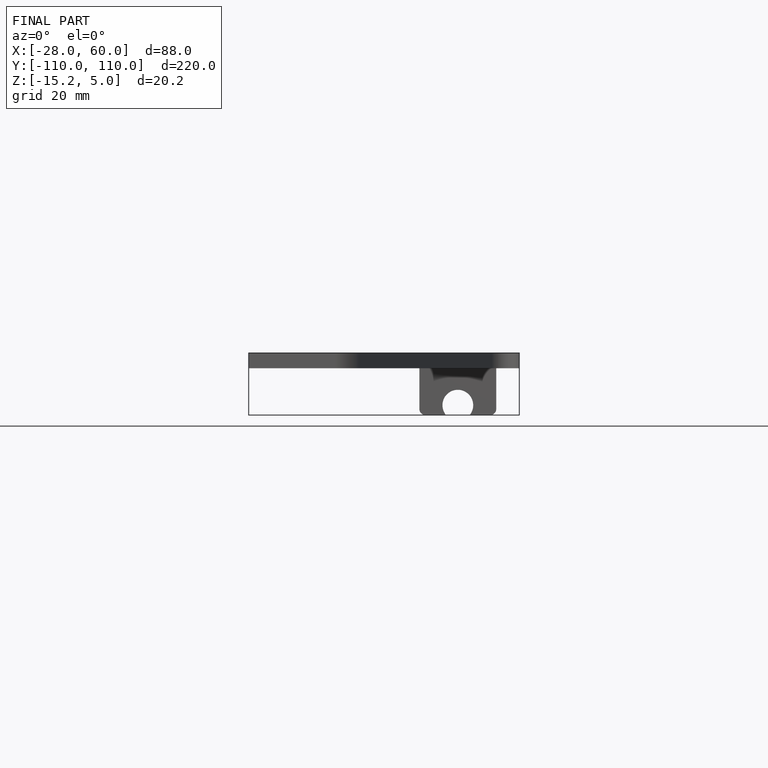
[diagram: finished part — front view with bounding-box wireframe]
